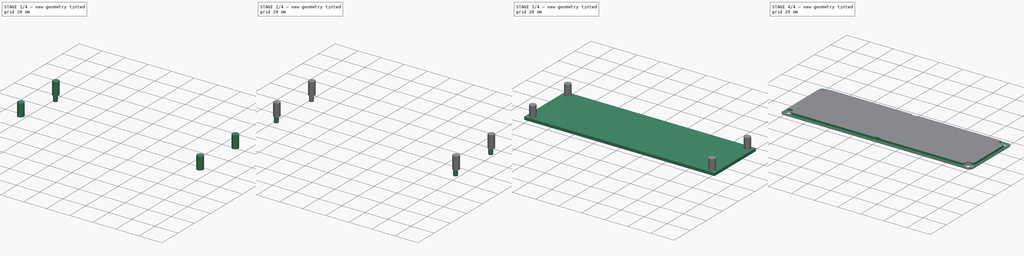
[diagram: build sequence overview — one tinted view per stage of 4, left to right]
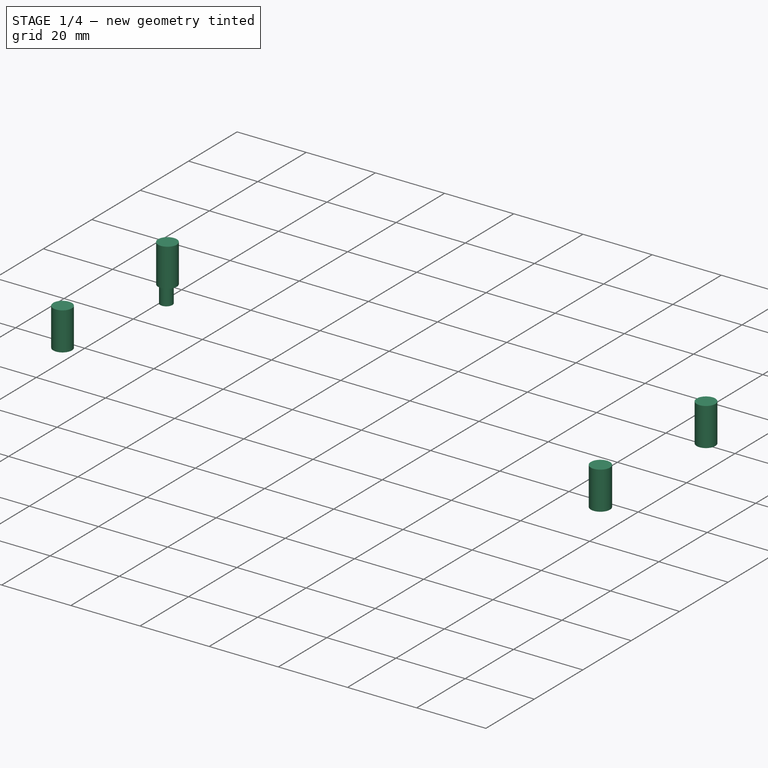
[diagram: stage 1 of 4 — iso view after this stage's code; geometry added in this stage tinted green]
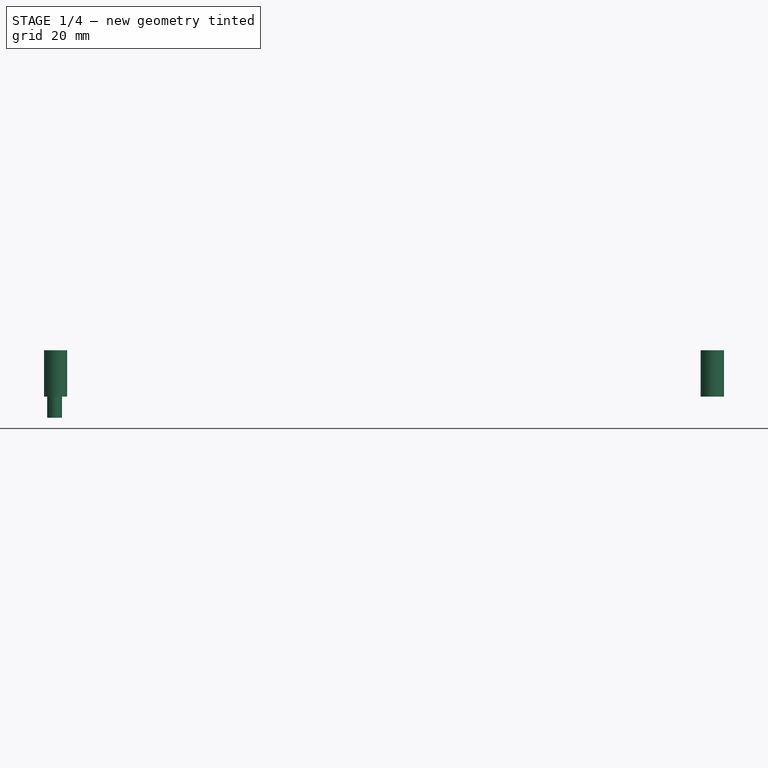
[diagram: stage 1 of 4 — front view after this stage's code; geometry added in this stage tinted green]
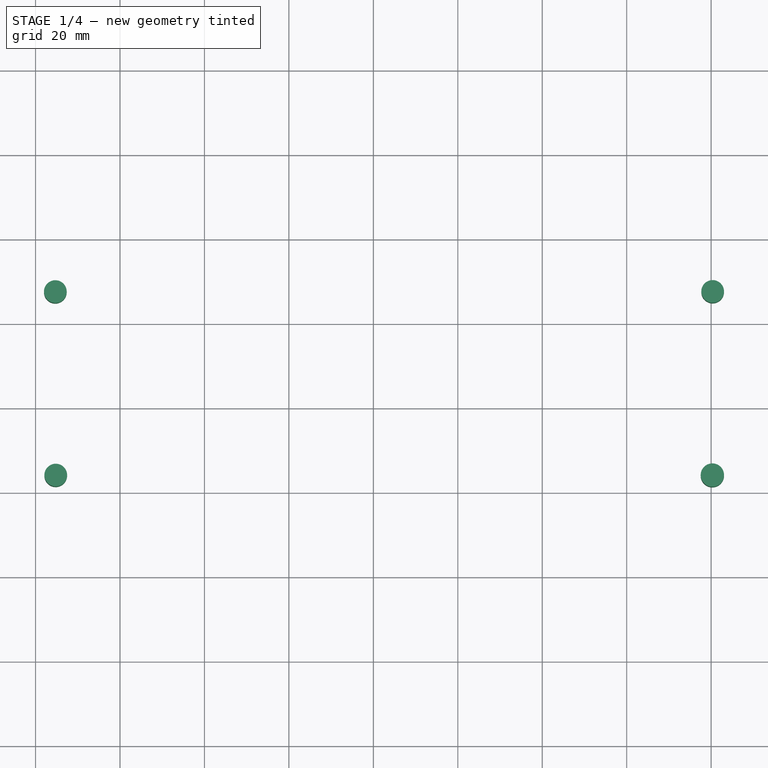
[diagram: stage 1 of 4 — top view after this stage's code; geometry added in this stage tinted green]
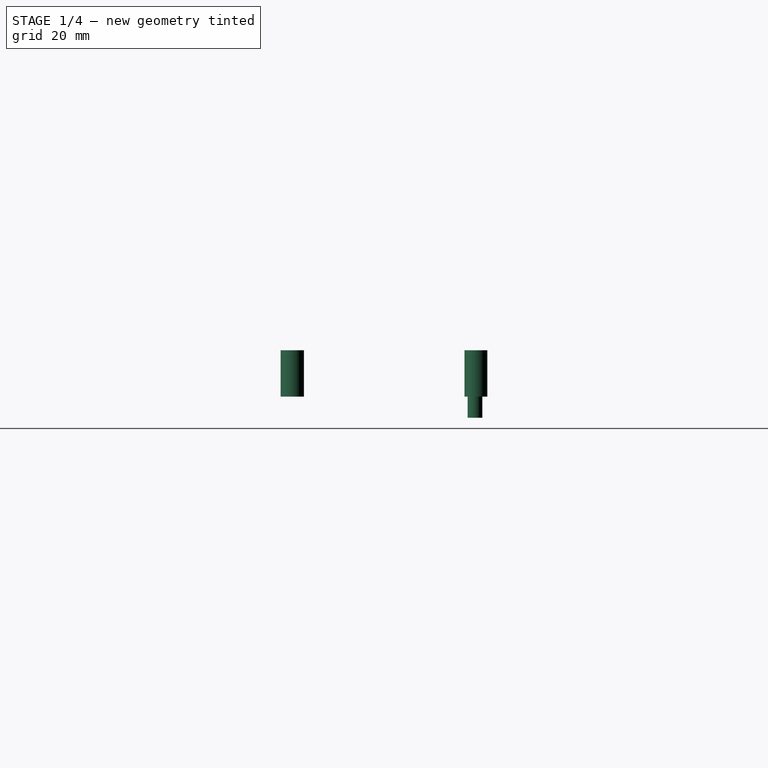
[diagram: stage 1 of 4 — right view after this stage's code; geometry added in this stage tinted green]
FCSTD DOCUMENT  (FreeCAD 0.17R13541 (Git))
Label: wip
License: CreativeCommons Attribution-ShareAlike
LicenseURL: http://creativecommons.org/licenses/by-sa/4.0/
objects: Part::Feature×6, Part::Cylinder×4, Part::Cut×3, Sketcher::SketchObject×2, Part::Extrusion×2, Part::MultiFuse×1, PartDesign::ShapeBinder×1, PartDesign::Body×1
note: 20 computed .brp shape members not serialized (recipe doc carries the construction recipe); baked Part::Feature solids carry a one-line shape summary decoded from their .brp

FEATURE [Part::Cylinder] Cylinder003
  Angle = 360
  AttacherType = Attacher::AttachEngine3D
  Height = 10
  MapMode = 1
  Placement = pos=(-35.5,47.268,155.006) rot=(0,0,1;0rad)
  Radius = 1.75
FEATURE [PartDesign::ShapeBinder] CopyCut001
FEATURE [Sketcher::SketchObject] Sketch001
  MapMode = 5
  Placement = pos=(0,0,160) rot=(0,0,1;0rad)
  Support = -> [CopyCut001]
  sketch-geometry (4):
    g0: Circle CenterX=-35.3194 CenterY=47.462 CenterZ=0 NormalX=0 NormalY=0 NormalZ=1 AngleXU=0 Radius=2.6943
    g1: Circle CenterX=-35.2204 CenterY=4 CenterZ=0 NormalX=0 NormalY=0 NormalZ=1 AngleXU=0 Radius=2.68994
    g2: Circle CenterX=120.291 CenterY=4 CenterZ=0 NormalX=0 NormalY=0 NormalZ=1 AngleXU=0 Radius=2.76796
    g3: Circle CenterX=120.36 CenterY=47.5034 CenterZ=0 NormalX=0 NormalY=0 NormalZ=1 AngleXU=0 Radius=2.68765
FEATURE [PartDesign::Body] Body
  Group = -> [Sketch,CopyCut001,Sketch001]
  Origin = -> Origin
FEATURE [Part::Extrusion] Extrude001
  Base = -> Sketch001
  Dir = (0,0,1)
  DirMode = 2
  FaceMakerClass = Part::FaceMakerBullseye
  LengthFwd = 11
  LengthRev = 0
  Solid = true
  Symmetric = false
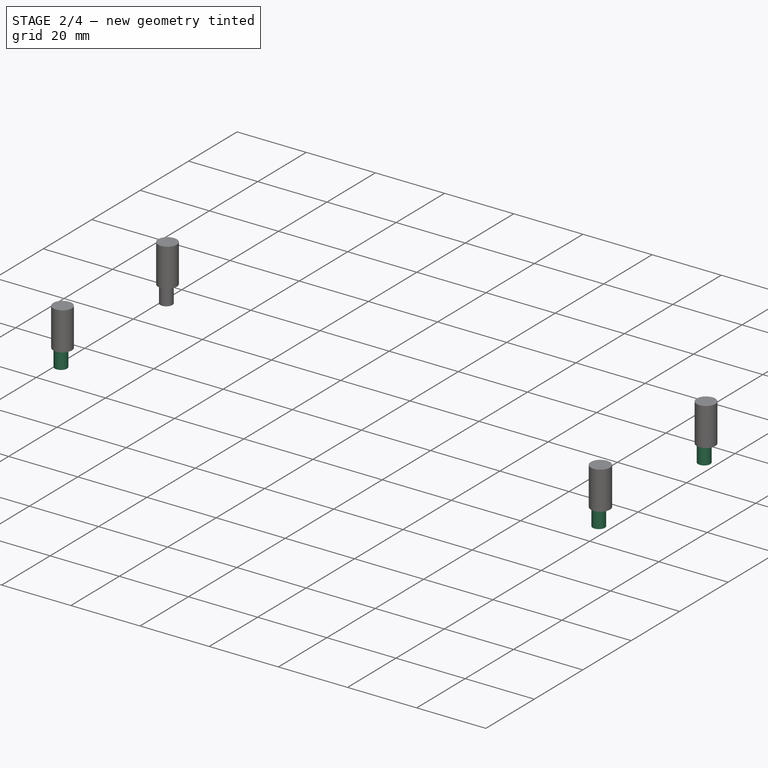
[diagram: stage 2 of 4 — iso view after this stage's code; geometry added in this stage tinted green]
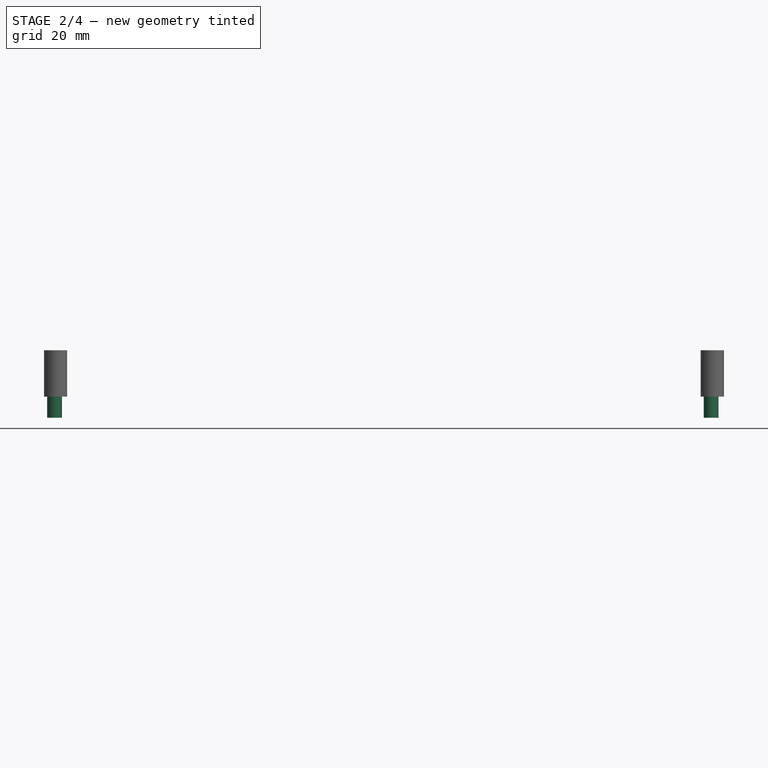
[diagram: stage 2 of 4 — front view after this stage's code; geometry added in this stage tinted green]
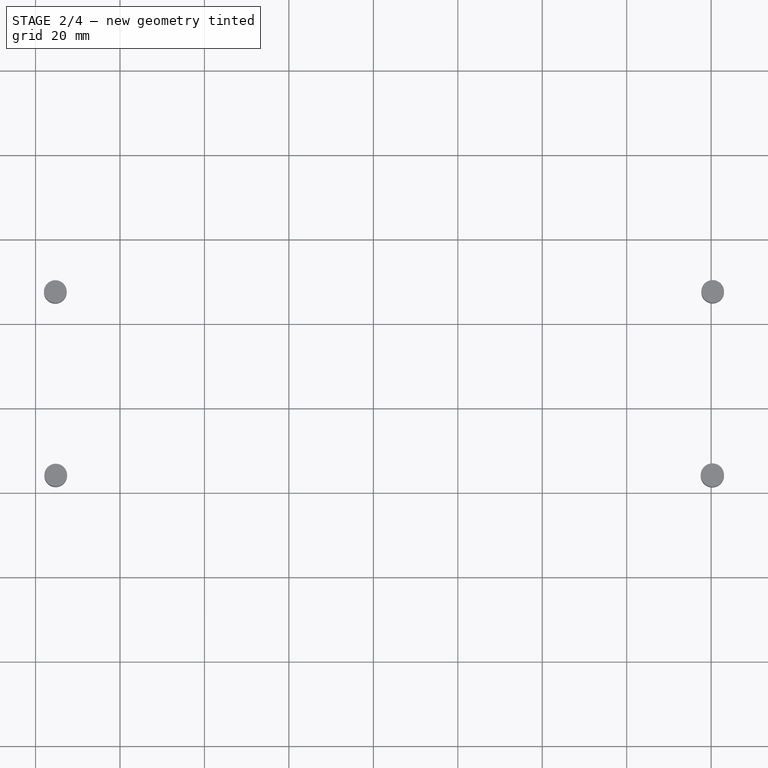
[diagram: stage 2 of 4 — top view after this stage's code; geometry added in this stage tinted green]
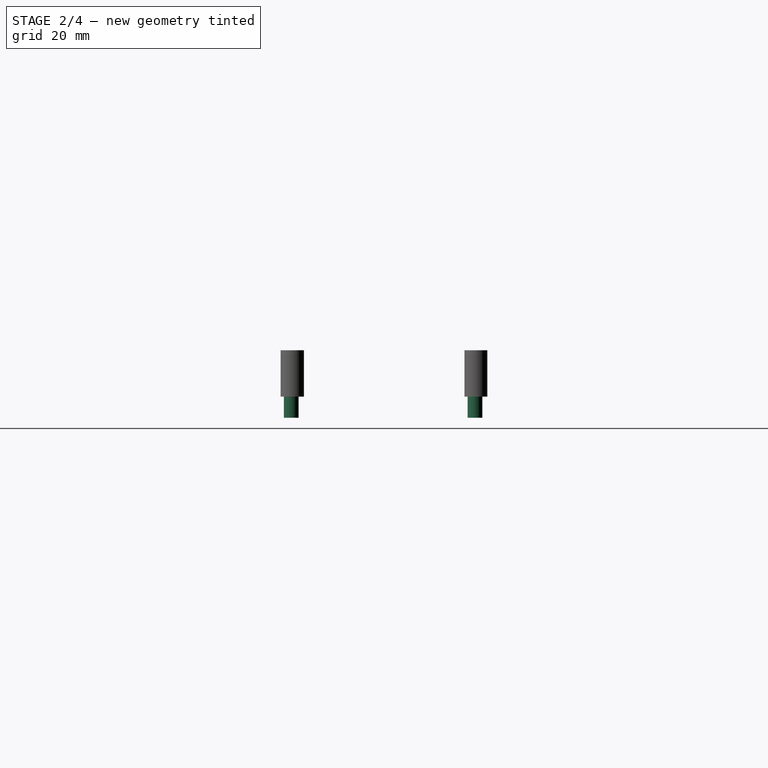
[diagram: stage 2 of 4 — right view after this stage's code; geometry added in this stage tinted green]
FEATURE [Part::Cylinder] Cylinder
  Angle = 360
  AttacherType = Attacher::AttachEngine3D
  Height = 10
  MapMode = 1
  Placement = pos=(120,3.73797,155.006) rot=(0,0,1;0rad)
  Radius = 1.75
FEATURE [Part::Cylinder] Cylinder001
  Angle = 360
  AttacherType = Attacher::AttachEngine3D
  Height = 10
  MapMode = 1
  Placement = pos=(120,47.268,155.006) rot=(0,0,1;0rad)
  Radius = 1.75
FEATURE [Part::Cylinder] Cylinder002
  Angle = 360
  AttacherType = Attacher::AttachEngine3D
  Height = 10
  MapMode = 1
  Placement = pos=(-35.5,3.73797,155.006) rot=(0,0,1;0rad)
  Radius = 1.75
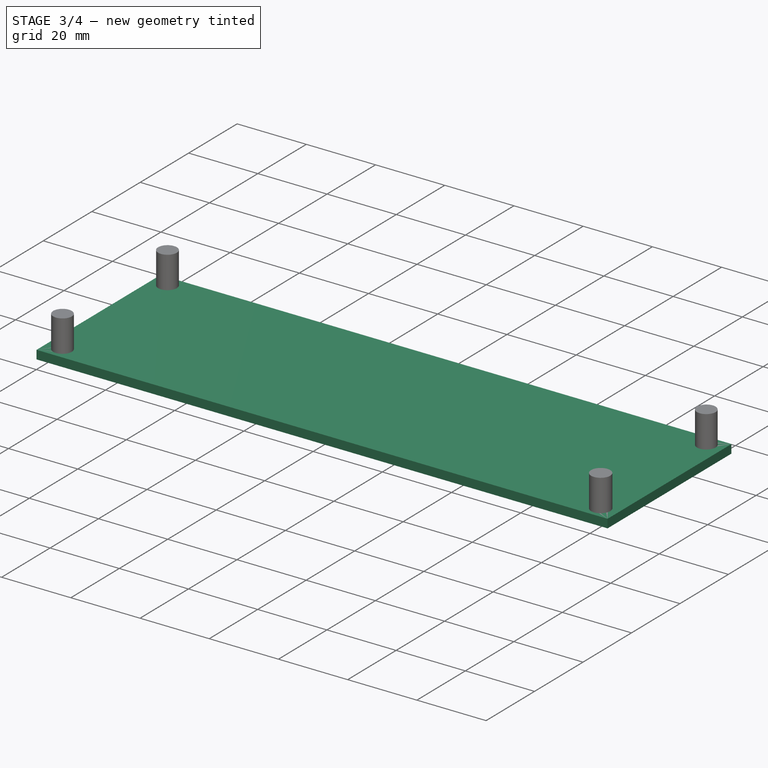
[diagram: stage 3 of 4 — iso view after this stage's code; geometry added in this stage tinted green]
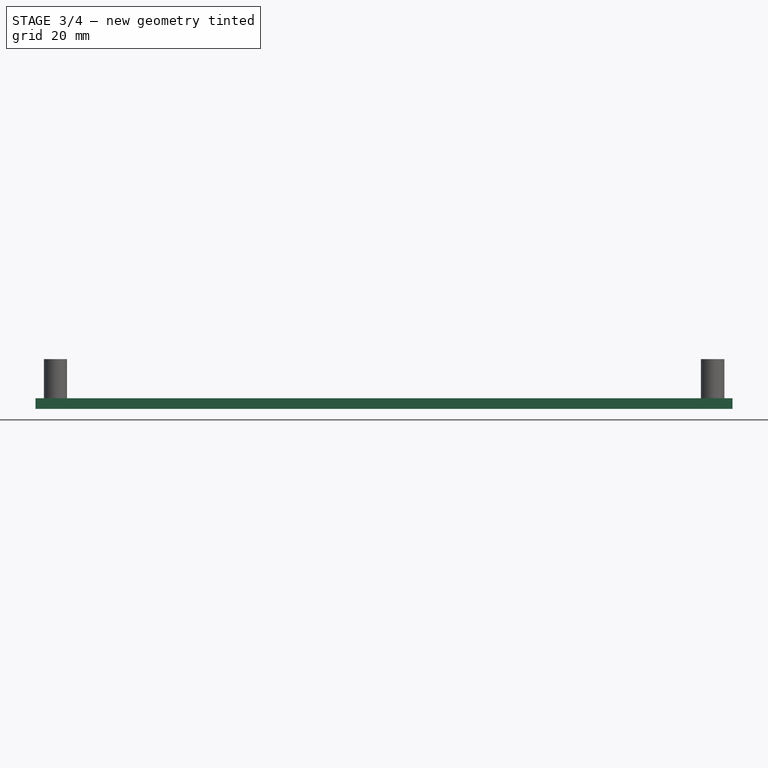
[diagram: stage 3 of 4 — front view after this stage's code; geometry added in this stage tinted green]
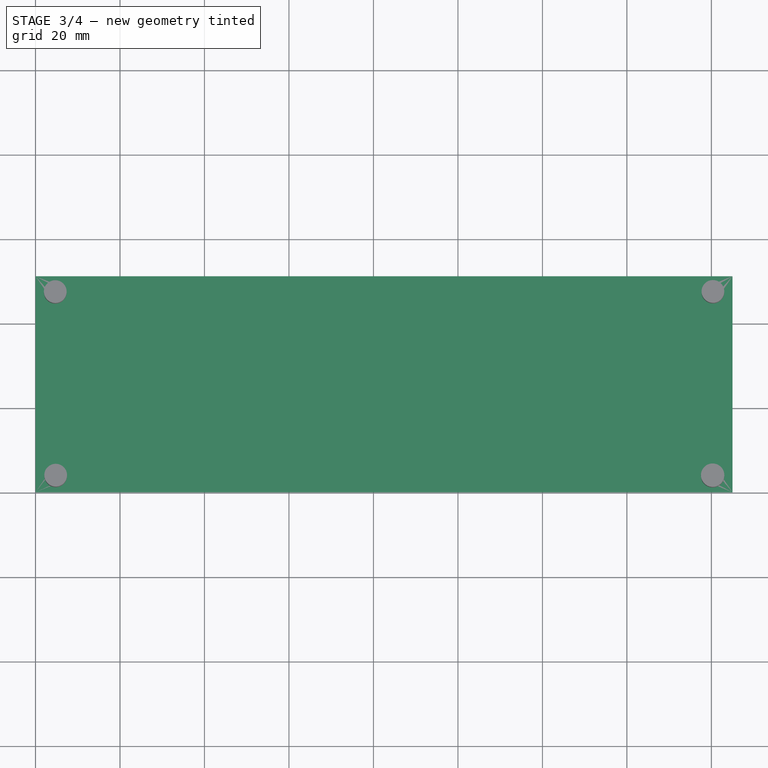
[diagram: stage 3 of 4 — top view after this stage's code; geometry added in this stage tinted green]
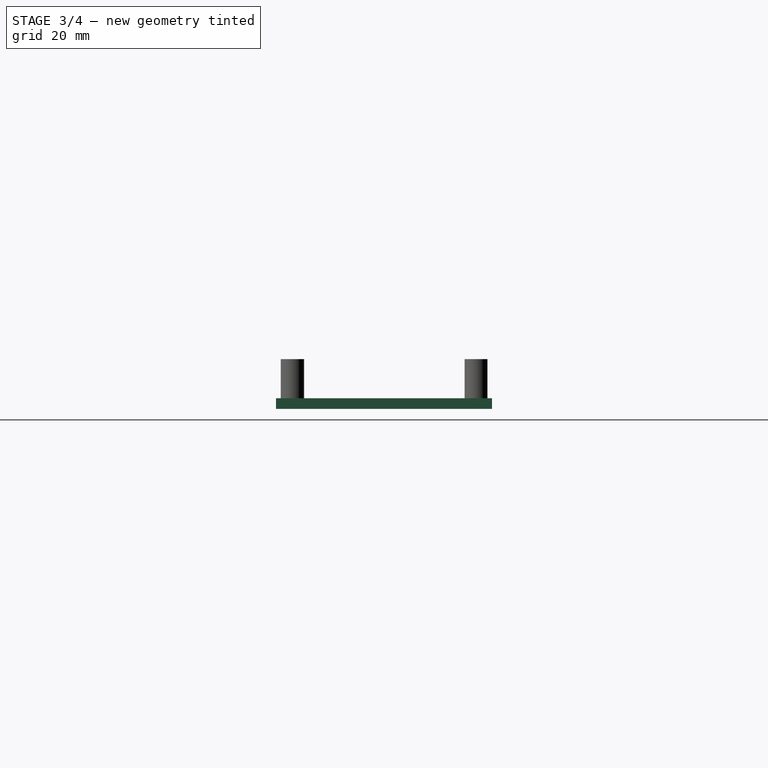
[diagram: stage 3 of 4 — right view after this stage's code; geometry added in this stage tinted green]
FEATURE [Part::Feature] Part__Feature  label="T_Bezel_Open"
  shape: bbox 170.5 x 56.62 x 11.5 mm, 104 faces (baked)
FEATURE [Part::Feature] Part__Feature001  label="T_End_Plate"
  shape: bbox 165 x 51.13 x 1.5 mm, 18 faces (baked)
FEATURE [Part::Feature] Part__Feature002  label="1455_screw"
  shape: bbox 5.5 x 5.5 x 8 mm, 18 faces (baked)
FEATURE [Part::Feature] Part__Feature003  label="1455_screw001"
  shape: bbox 5.5 x 5.5 x 8 mm, 18 faces (baked)
FEATURE [Part::Feature] Part__Feature004  label="1455_screw002"
  shape: bbox 5.5 x 5.5 x 8 mm, 18 faces (baked)
FEATURE [Part::Feature] Part__Feature005  label="211455_screw003"
  shape: bbox 5.5 x 5.5 x 8 mm, 18 faces (baked)
FEATURE [Sketcher::SketchObject] Sketch
  sketch-geometry (4):
    g0: LineSegment StartX=-82.5 StartY=0 StartZ=0 EndX=82.5 EndY=0 EndZ=0
    g1: LineSegment StartX=82.5 StartY=0 StartZ=0 EndX=82.5 EndY=-51.13 EndZ=0
    g2: LineSegment StartX=82.5 StartY=-51.13 StartZ=0 EndX=-82.5 EndY=-51.13 EndZ=0
    g3: LineSegment StartX=-82.5 StartY=-51.13 StartZ=0 EndX=-82.5 EndY=0 EndZ=0
  constraints (11):
    c: Coincident(g0,g1)
    c: Coincident(g1,g2)
    c: Coincident(g2,g3)
    c: Coincident(g3,g0)
    c: Horizontal(g0)
    c: Horizontal(g2)
    c: Vertical(g1)
    c: Vertical(g3)
    c: Distance(g0) = 165
    c: Distance(g1) = 51.13
    c: Symmetric(g0,g0,g-1)
FEATURE [Part::Extrusion] Extrude
  Base = -> Sketch
  Dir = (0,0,1)
  DirMode = 2
  FaceMakerClass = Part::FaceMakerBullseye
  LengthFwd = 2.5
  LengthRev = 0
  Placement = pos=(42.5,51.25,159.25) rot=(0,0,1;0rad)
  Solid = true
  Symmetric = false
FEATURE [Part::MultiFuse] Fusion
  Placement = pos=(0.275,0.2,0) rot=(0,0,1;0rad)
  Refine = true
  Shapes = -> [Cylinder,Cylinder001,Cylinder002,Cylinder003]
FEATURE [Part::Cut] Cut
  Base = -> Extrude
  Refine = true
  Tool = -> Fusion
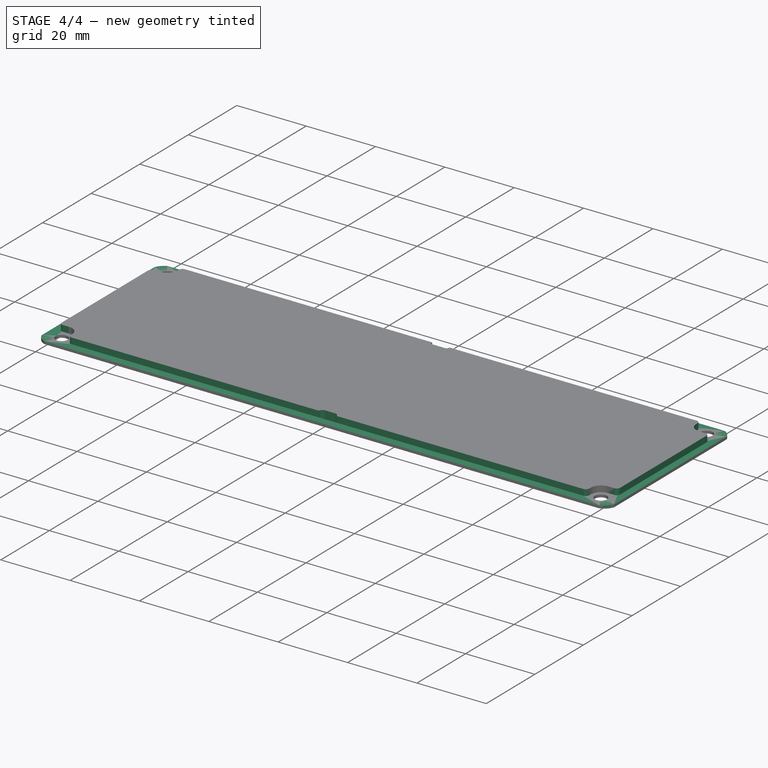
[diagram: stage 4 of 4 — iso view after this stage's code; geometry added in this stage tinted green]
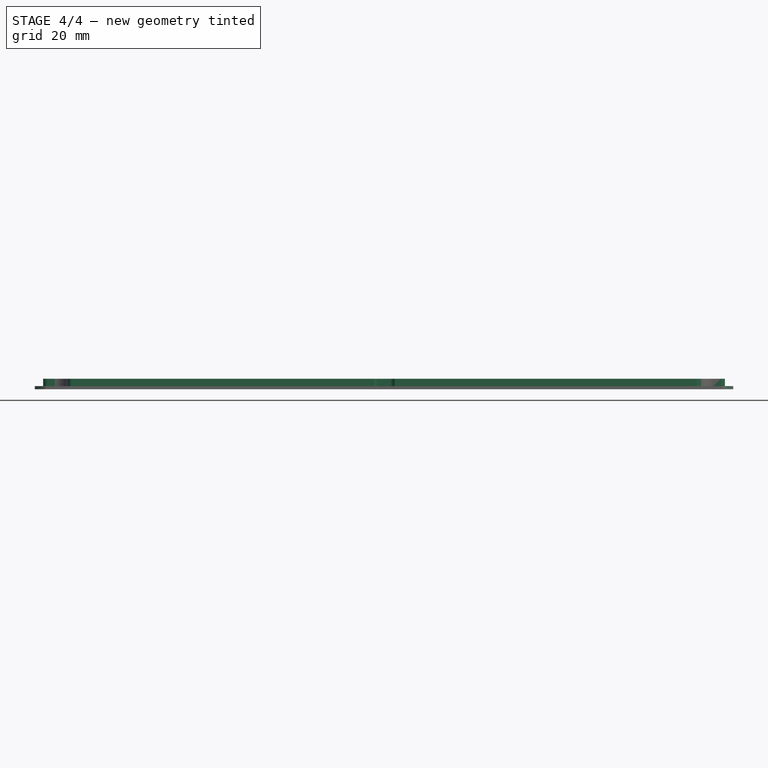
[diagram: stage 4 of 4 — front view after this stage's code; geometry added in this stage tinted green]
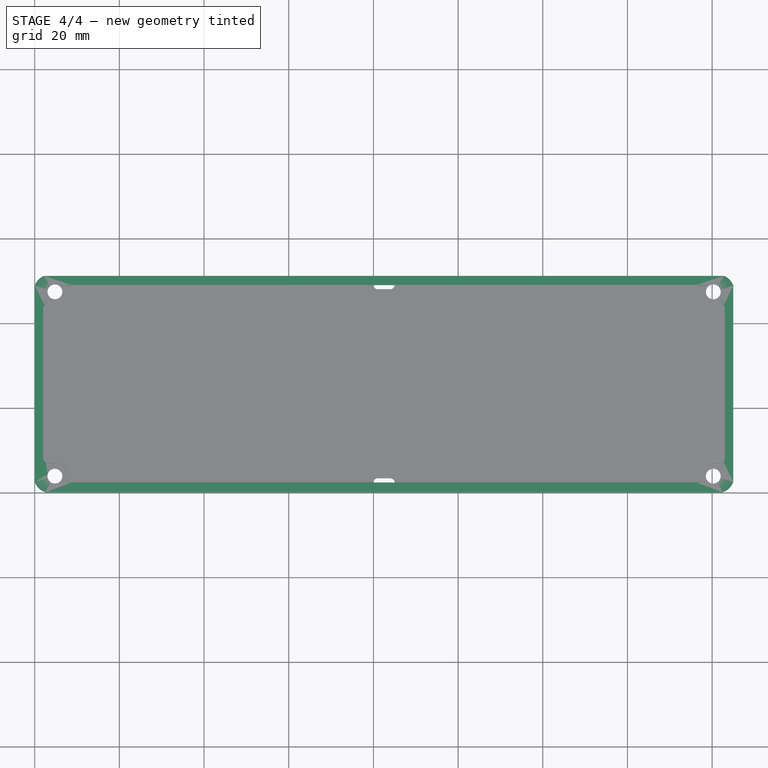
[diagram: stage 4 of 4 — top view after this stage's code; geometry added in this stage tinted green]
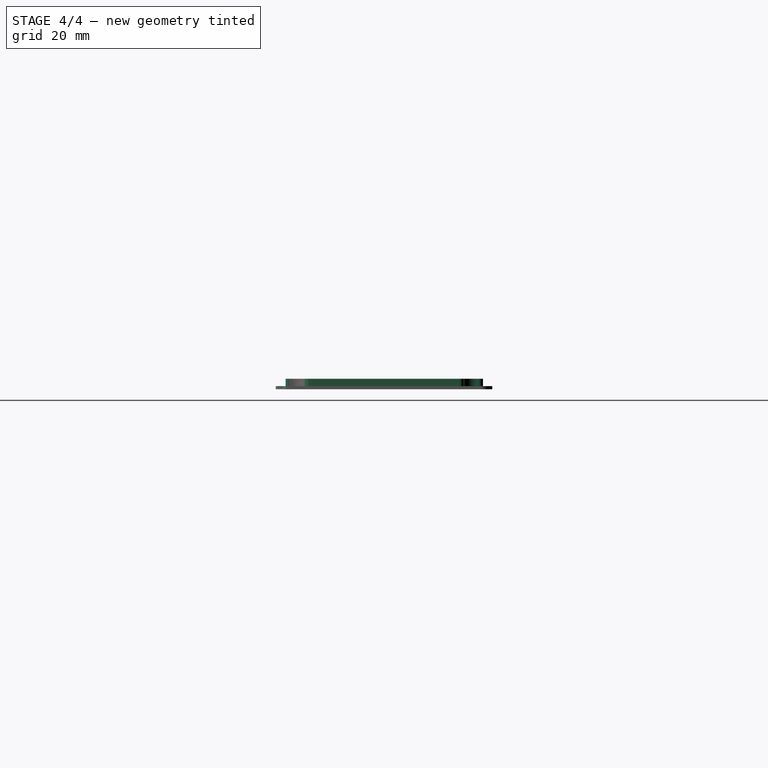
[diagram: stage 4 of 4 — right view after this stage's code; geometry added in this stage tinted green]
FEATURE [Part::Cut] Cut001
  Base = -> Cut
  Refine = true
  Tool = -> Part__Feature
FEATURE [Part::Cut] Cut002
  Base = -> Cut001
  Refine = true
  Tool = -> Extrude001
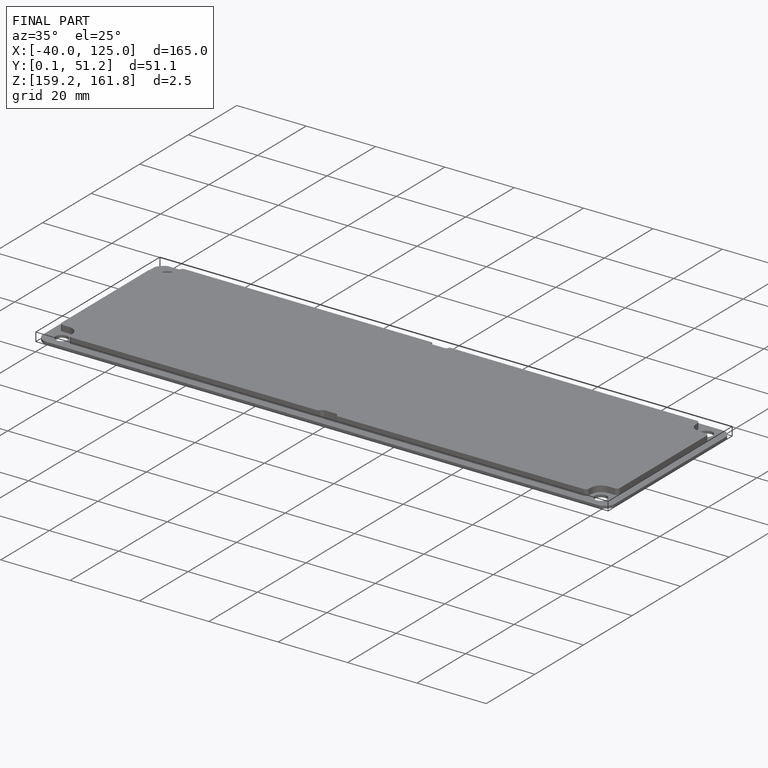
[diagram: finished part — iso view with bounding-box wireframe]
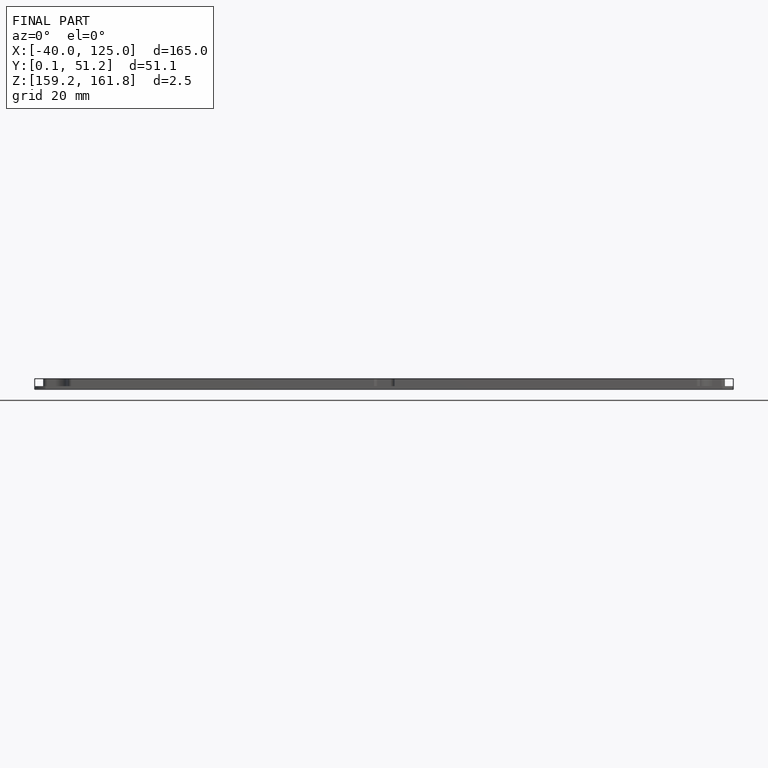
[diagram: finished part — front view with bounding-box wireframe]
